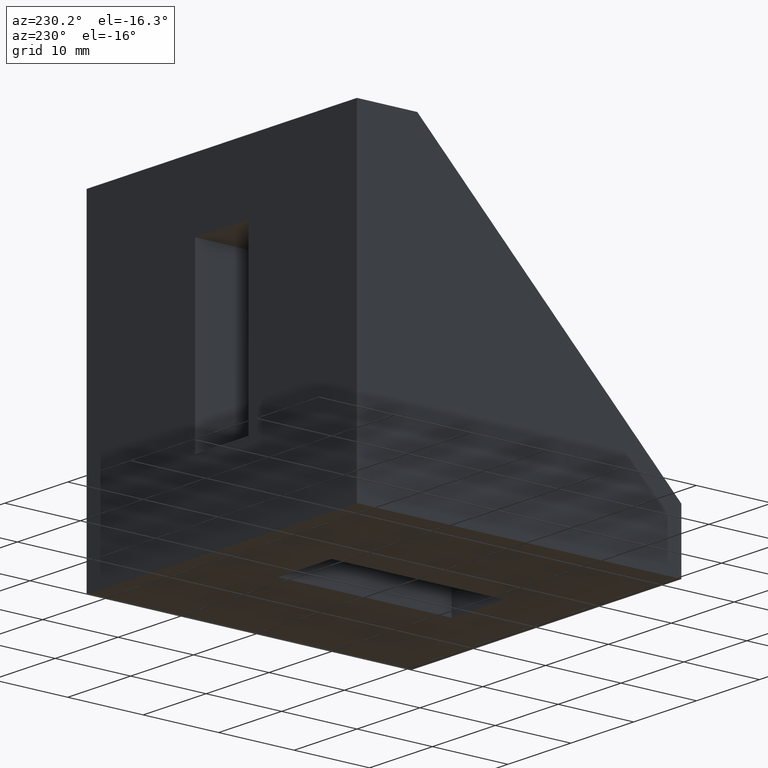
[diagram: clean part render]
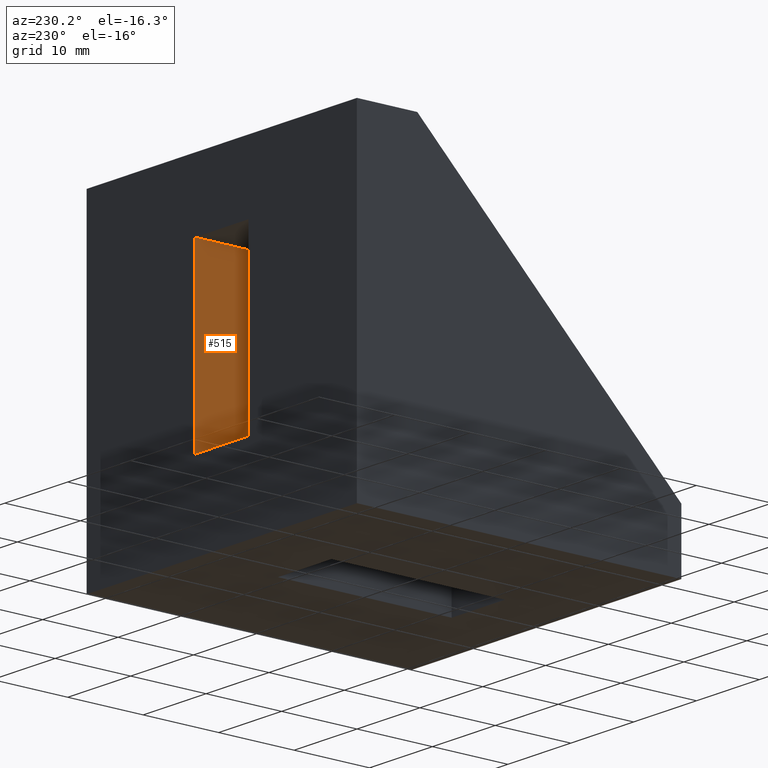
[diagram: same view with one face highlighted and labeled with its STEP entity id]
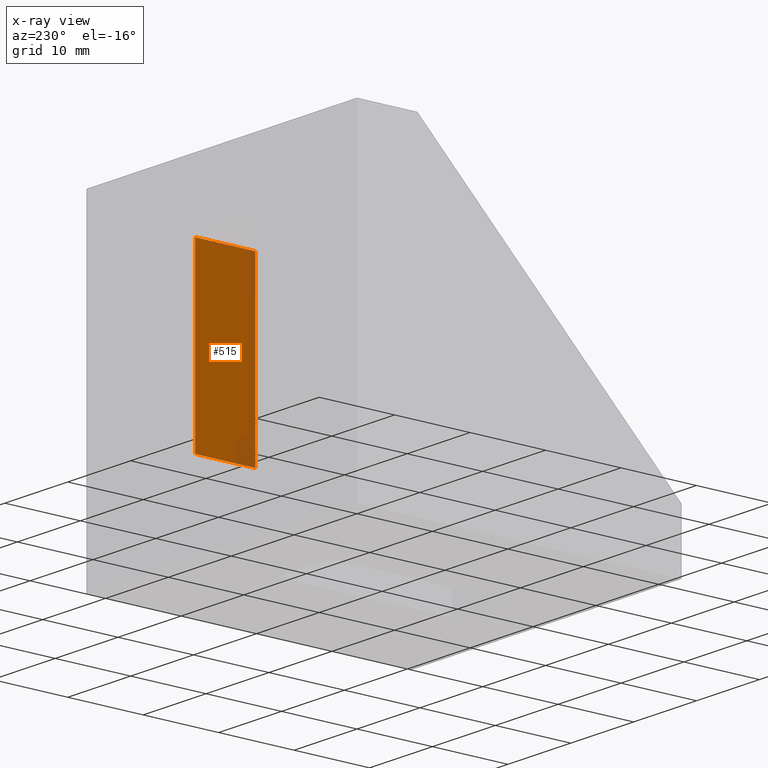
[diagram: x-ray of the same camera — body ghosted, the highlighted face saturated]
A machine part, auxiliary view. The second image highlights one B-rep face of the part: STEP entity #515.
The next image is the same camera in x-ray: the body ghosted, the highlighted face saturated — about 14% of this face is hidden behind the body in this view.
In plain terms, the highlighted planar face has unit normal (1, 0, -0).
Its self-contained STEP definition (entity closure, byte-faithful):
#246=CARTESIAN_POINT('',(25.750000504377017,1.150955E-013,33.999998780362084));
#247=VERTEX_POINT('',#246);
#262=CARTESIAN_POINT('',(25.749999910756920,1.142073E-013,10.999998780453952));
#263=VERTEX_POINT('',#262);
#270=CARTESIAN_POINT('',(25.749999910756920,1.142073E-013,10.999998780453950));
#271=DIRECTION('',(0.000000025809569,3.160761E-024,1.000000000000000));
#272=VECTOR('',#271,22.999999999908141);
#273=LINE('',#270,#272);
#274=EDGE_CURVE('',#263,#247,#273,.T.);
#335=CARTESIAN_POINT('',(25.750000504377017,-7.999999999967879,33.999998780362084));
#336=VERTEX_POINT('',#335);
#337=CARTESIAN_POINT('',(25.749999910756920,-7.999999999967880,10.999998780453950));
#338=VERTEX_POINT('',#337);
#339=CARTESIAN_POINT('',(25.750000504377017,-7.999999999967879,33.999998780362084));
#340=DIRECTION('',(-0.000000025809569,0.0,-1.000000000000000));
#341=VECTOR('',#340,22.999999999908141);
#342=LINE('',#339,#341);
#343=EDGE_CURVE('',#336,#338,#342,.T.);
#460=CARTESIAN_POINT('',(25.750000504377017,1.154632E-013,33.999998780362084));
#461=DIRECTION('',(0.0,-1.0,0.0));
#462=VECTOR('',#461,7.999999999967995);
#463=LINE('',#460,#462);
#464=EDGE_CURVE('',#247,#336,#463,.T.);
#475=CARTESIAN_POINT('',(25.749999910756920,-7.999999999967880,10.999998780453950));
#476=DIRECTION('',(0.0,1.0,0.0));
#477=VECTOR('',#476,7.999999999967995);
#478=LINE('',#475,#477);
#479=EDGE_CURVE('',#338,#263,#478,.T.);
#504=CARTESIAN_POINT('',(25.749999851394787,0.800004724464611,8.699994055993667));
#505=DIRECTION('',(1.000000000000000,1.224647E-016,-0.000000025809569));
#506=DIRECTION('',(0.000000025809569,3.160761E-024,1.000000000000000));
#507=AXIS2_PLACEMENT_3D('',#504,#505,#506);
#508=PLANE('',#507);
#509=ORIENTED_EDGE('',*,*,#464,.F.);
#510=ORIENTED_EDGE('',*,*,#274,.F.);
#511=ORIENTED_EDGE('',*,*,#479,.F.);
#512=ORIENTED_EDGE('',*,*,#343,.F.);
#513=EDGE_LOOP('',(#509,#510,#511,#512));
#514=FACE_OUTER_BOUND('',#513,.T.);
#515=ADVANCED_FACE('',(#514),#508,.F.);